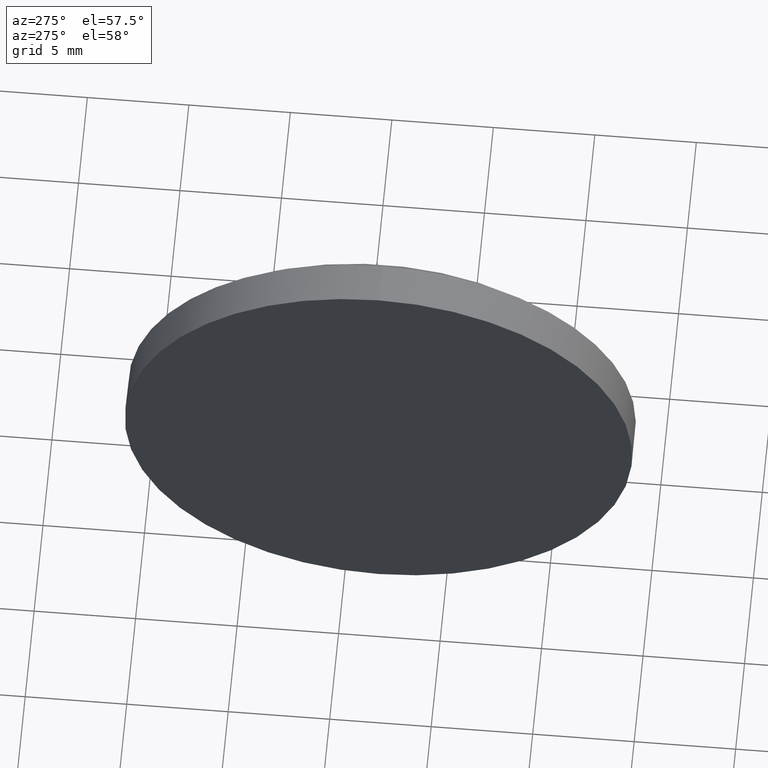
[diagram: clean part render]
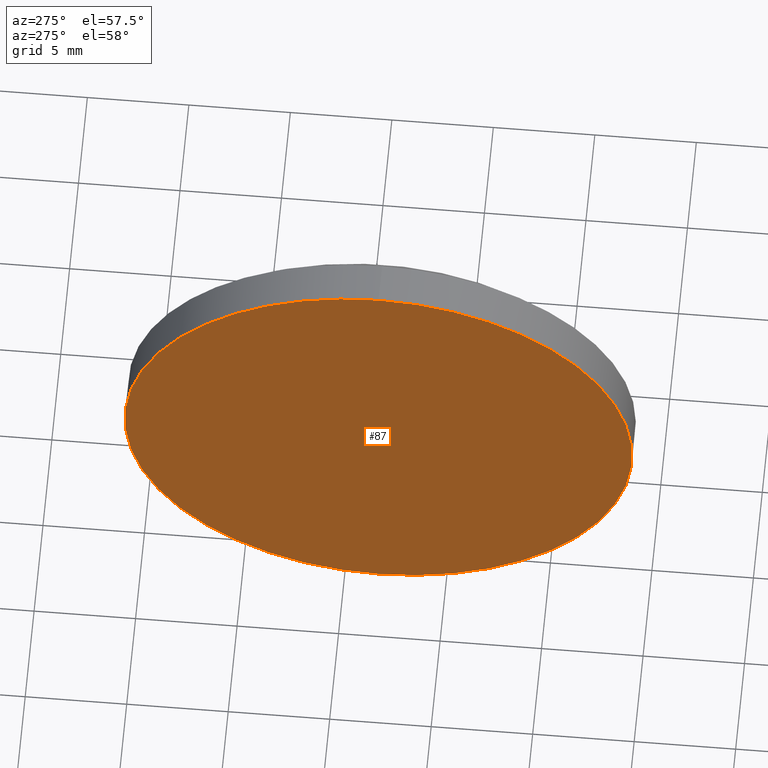
[diagram: same view with one face highlighted and labeled with its STEP entity id]
A machine part, auxiliary view. The second image highlights one B-rep face of the part: STEP entity #87.
In plain terms, the highlighted planar face has unit normal (1, 0, 0).
Its self-contained STEP definition (entity closure, byte-faithful):
#4 = FACE_OUTER_BOUND ( 'NONE', #145, .T. ) ;
#33 = DIRECTION ( 'NONE',  ( -1.000000000000000000, -0.0000000000000000000, -0.0000000000000000000 ) ) ;
#34 = CARTESIAN_POINT ( 'NONE',  ( 578.2815510819143600, 288.3208065953607500, -12.50000000000001100 ) ) ;
#38 = CARTESIAN_POINT ( 'NONE',  ( 578.2815510819143600, 288.3208065953607500, 0.0000000000000000000 ) ) ;
#41 = DIRECTION ( 'NONE',  ( 0.0000000000000000000, 0.0000000000000000000, 1.000000000000000000 ) ) ;
#44 = AXIS2_PLACEMENT_3D ( 'NONE', #156, #67, #164 ) ;
#52 = PLANE ( 'NONE',  #44 ) ;
#67 = DIRECTION ( 'NONE',  ( 1.000000000000000000, 0.0000000000000000000, 0.0000000000000000000 ) ) ;
#68 = ORIENTED_EDGE ( 'NONE', *, *, #149, .T. ) ;
#75 = ORIENTED_EDGE ( 'NONE', *, *, #106, .T. ) ;
#76 = AXIS2_PLACEMENT_3D ( 'NONE', #38, #90, #41 ) ;
#87 = ADVANCED_FACE ( 'NONE', ( #4 ), #52, .F. ) ;
#90 = DIRECTION ( 'NONE',  ( -1.000000000000000000, -0.0000000000000000000, -0.0000000000000000000 ) ) ;
#106 = EDGE_CURVE ( 'NONE', #124, #122, #176, .T. ) ;
#122 = VERTEX_POINT ( 'NONE', #128 ) ;
#124 = VERTEX_POINT ( 'NONE', #34 ) ;
#126 = CARTESIAN_POINT ( 'NONE',  ( 578.2815510819143600, 288.3208065953607500, 0.0000000000000000000 ) ) ;
#128 = CARTESIAN_POINT ( 'NONE',  ( 578.2815510819143600, 288.3208065953607500, 12.50000000000001100 ) ) ;
#144 = CIRCLE ( 'NONE', #76, 12.50000000000001100 ) ;
#145 = EDGE_LOOP ( 'NONE', ( #68, #75 ) ) ;
#149 = EDGE_CURVE ( 'NONE', #122, #124, #144, .T. ) ;
#156 = CARTESIAN_POINT ( 'NONE',  ( 578.2815510819143600, 288.3208065953607500, 0.0000000000000000000 ) ) ;
#162 = DIRECTION ( 'NONE',  ( 0.0000000000000000000, 0.0000000000000000000, 1.000000000000000000 ) ) ;
#164 = DIRECTION ( 'NONE',  ( 0.0000000000000000000, 0.0000000000000000000, -1.000000000000000000 ) ) ;
#174 = AXIS2_PLACEMENT_3D ( 'NONE', #126, #33, #162 ) ;
#176 = CIRCLE ( 'NONE', #174, 12.50000000000001100 ) ;